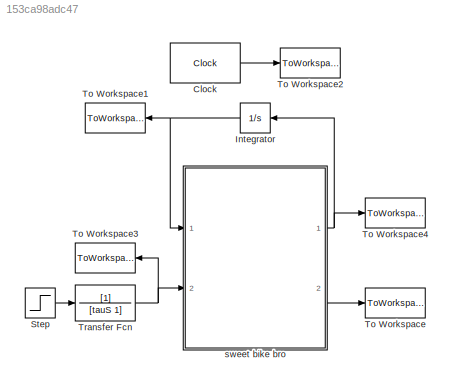
MODEL slx_153ca98adc47
KIND model
CONFIG AbsTol = auto
CONFIG FixedStep = auto
CONFIG MaxStep = maxstep
CONFIG MinStep = auto
CONFIG RelTol = 1e-3
CONFIG SampleTimeConstraint = Unconstrained
CONFIG Solver = ode45
CONFIG SolverMode = Auto
CONFIG SolverName = ode45
CONFIG StartTime = 0.0
CONFIG StopTime = t_final
BLOCK [Clock] Clock
  DisplayTime = on
BLOCK [Integrator] Integrator
  InitialCondition = inits
  Ports = [1, 1]
BLOCK [Step] Step
  After = strMag*pi/180
  SampleTime = 0
BLOCK [ToWorkspace] To Workspace
  FixptAsFi = on
  MaxDataPoints = inf
  Ports = [1]
  SampleTime = -1
  Save2DSignal = 3-D array (concatenate along third dimension)
  VariableName = int
BLOCK [ToWorkspace] To Workspace1
  FixptAsFi = on
  MaxDataPoints = inf
  Ports = [1]
  SampleTime = -1
  Save2DSignal = 3-D array (concatenate along third dimension)
  VariableName = x
BLOCK [ToWorkspace] To Workspace2
  FixptAsFi = on
  MaxDataPoints = inf
  Ports = [1]
  SampleTime = -1
  Save2DSignal = 3-D array (concatenate along third dimension)
  VariableName = t
BLOCK [ToWorkspace] To Workspace3
  FixptAsFi = on
  MaxDataPoints = inf
  Ports = [1]
  SampleTime = -1
  Save2DSignal = 3-D array (concatenate along third dimension)
  VariableName = delta
BLOCK [ToWorkspace] To Workspace4
  FixptAsFi = on
  MaxDataPoints = inf
  Ports = [1]
  SampleTime = -1
  Save2DSignal = 3-D array (concatenate along third dimension)
  VariableName = dx
BLOCK [TransferFcn] Transfer Fcn
  Denominator = [tauS 1]
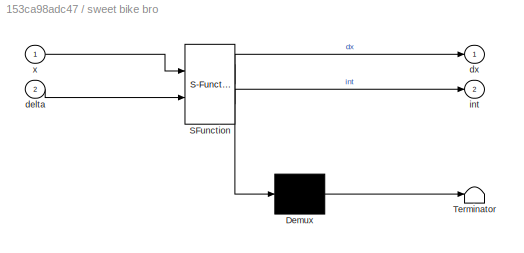
BLOCK [SubSystem] sweet bike bro
  ErrorFcn = Stateflow.Translate.translate
  PermitHierarchicalResolution = ExplicitOnly
  Ports = [2, 2]
  RequestExecContextInheritance = off
  SFBlockType = MATLAB Function
  TreatAsAtomicUnit = on
  Variant = off
BLOCK [Demux] sweet bike bro/ Demux 
  Outputs = 1
  Ports = [1, 1]
BLOCK [S-Function] sweet bike bro/ SFunction 
  EnableBusSupport = on
  FunctionName = sf_sfun
  Parameters = Cf,Cr,Jy,a,b,m,u0
  PortCounts = [2 3]
  Ports = [2, 3]
  SFunctionDeploymentMode = off
  Tag = Stateflow S-Function bikecar 2
BLOCK [Terminator] sweet bike bro/ Terminator 
BLOCK [Inport] sweet bike bro/delta
  IconDisplay = Port number
  Port = 2
BLOCK [Outport] sweet bike bro/dx
  IconDisplay = Port number
BLOCK [Outport] sweet bike bro/int
  IconDisplay = Port number
  Port = 2
BLOCK [Inport] sweet bike bro/x
  IconDisplay = Port number
LINE Clock:1 -> To Workspace2:1
NET Integrator:1 -> To Workspace1:1, sweet bike bro:1
LINE Step:1 -> Transfer Fcn:1
NET Transfer Fcn:1 -> To Workspace3:1, sweet bike bro:2
NET sweet bike bro:1 -> Integrator:1, To Workspace4:1
LINE sweet bike bro:2 -> To Workspace:1
note: NET lines group one-source signal fan-out (src -> all destinations, sorted); 1:1 wires keep LINE
CHART sweet bike bro states=1 transitions=1
  STATE_LABEL 'eML_blk_kernel()'
  STATE_LABEL 'SCRIPT:\nfunction [dx, int] = bike(x,delta, ...\n    m,Jy,Cf,Cr,a,b,u0)\n%#codegen\nv = x(1);\nwy = x(2);\npsi = x(3);\ndX = u0*cos(psi) - v*sin(psi);\ndY = u0*sin(psi) + v*cos(psi);\n\nalphaF = delta - v/u0 - a*wy/u0;\nalphaR = -v/u0 + b*wy/u0;\nFyF = Cf*alphaF; FyR = Cr*alphaR;\ndv = 1/m*(FyF + FyR) - u0*wy;\ndwy = 1/Jy*(a*FyF - b*FyR);\ndpsi = wy;\nlateracc = (FyF+FyR)/m/9.81;\n\ndx = [dv; dwy; dpsi; dX; dY];\nin...<+31ch>'
